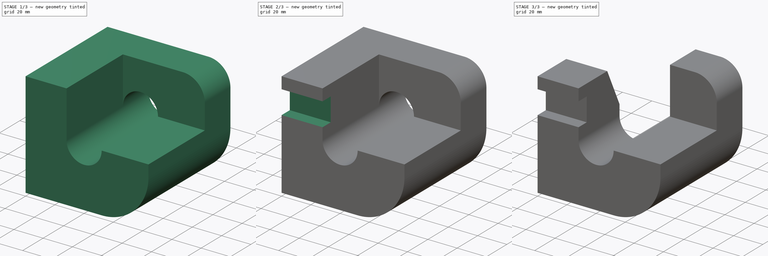
[diagram: build sequence overview — one tinted view per stage of 3, left to right]
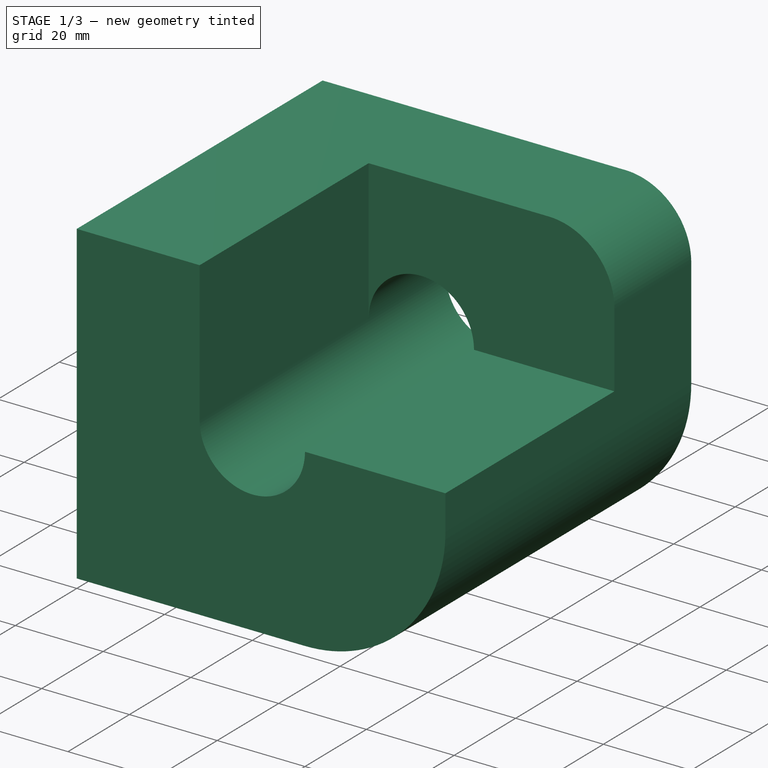
[diagram: stage 1 of 3 — iso view after this stage's code; geometry added in this stage tinted green]
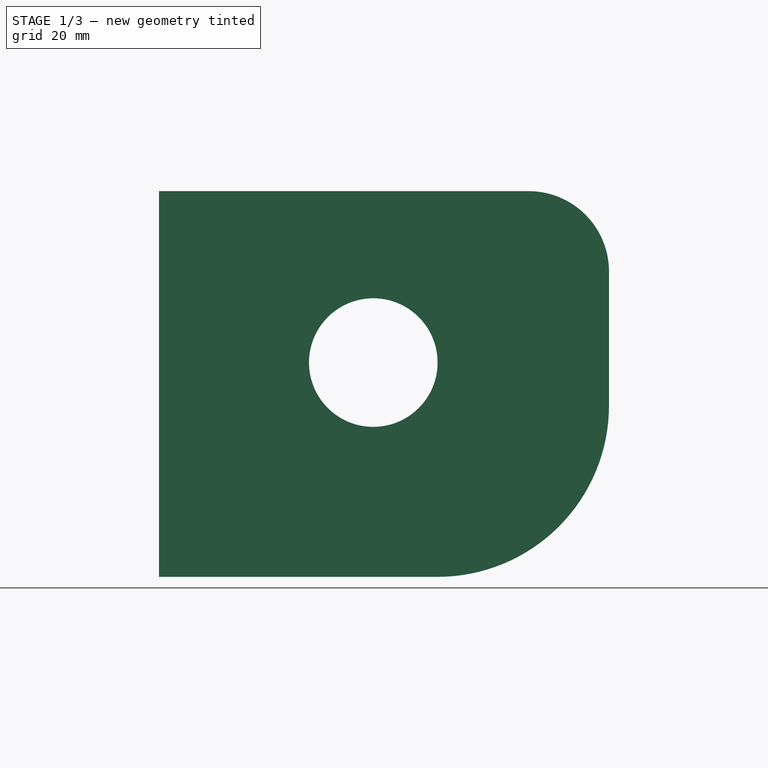
[diagram: stage 1 of 3 — front view after this stage's code; geometry added in this stage tinted green]
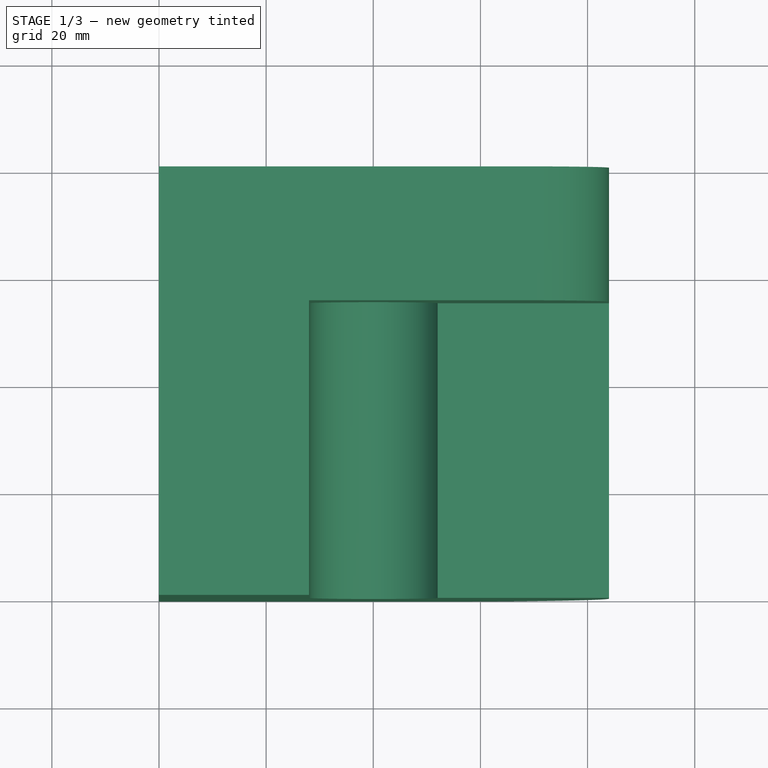
[diagram: stage 1 of 3 — top view after this stage's code; geometry added in this stage tinted green]
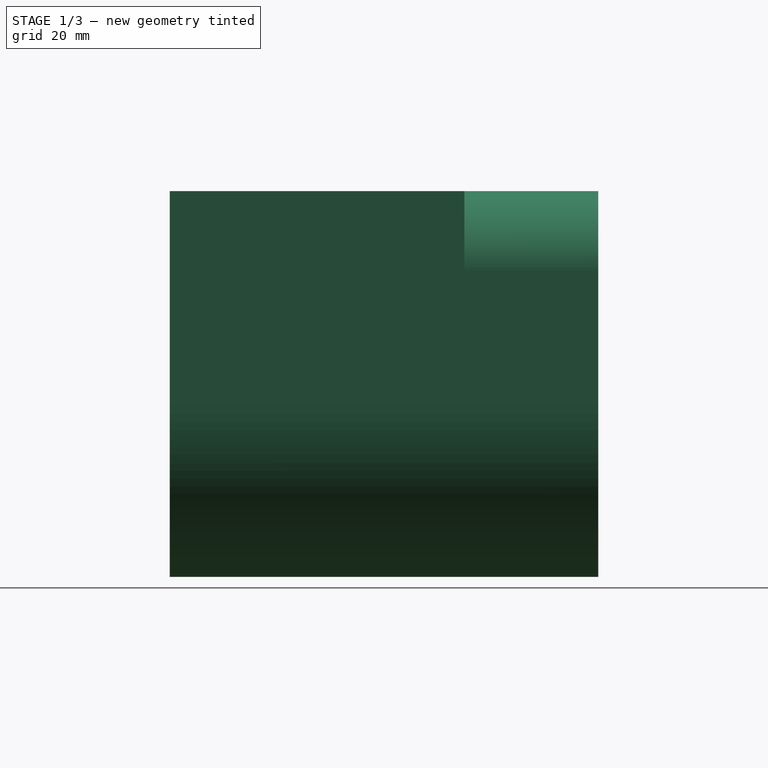
[diagram: stage 1 of 3 — right view after this stage's code; geometry added in this stage tinted green]
FCSTD DOCUMENT  (FreeCAD 0.16R)
Label: Fig 3.20 Final
License: All rights reserved
LicenseURL: http://en.wikipedia.org/wiki/All_rights_reserved
objects: Sketcher::SketchObject×5, PartDesign::Pocket×4, PartDesign::Pad×1
note: 15 computed .brp shape members not serialized (recipe doc carries the construction recipe); baked Part::Feature solids carry a one-line shape summary decoded from their .brp

FEATURE [Sketcher::SketchObject] Sketch
  Placement = pos=(0,0,0) rot=(-1,0,0;4.71239rad)
  sketch-geometry (7):
    g0: LineSegment StartX=-40 StartY=32 StartZ=0 EndX=29 EndY=32 EndZ=0
    g1: LineSegment StartX=44 StartY=17 StartZ=0 EndX=44 EndY=-8 EndZ=0
    g2: LineSegment StartX=12 StartY=-40 StartZ=0 EndX=-40 EndY=-40 EndZ=0
    g3: LineSegment StartX=-40 StartY=-40 StartZ=0 EndX=-40 EndY=32 EndZ=0
    g4: ArcOfCircle CenterX=12 CenterY=-8 CenterZ=0 NormalX=0 NormalY=0 NormalZ=1 Radius=32 StartAngle=4.71239 EndAngle=6.28319
    g5: ArcOfCircle CenterX=29 CenterY=17 CenterZ=0 NormalX=0 NormalY=0 NormalZ=1 Radius=15 StartAngle=0 EndAngle=1.5708
    g6: Circle CenterX=0 CenterY=0 CenterZ=0 NormalX=0 NormalY=0 NormalZ=1 Radius=12
  constraints (19):
    c: Coincident(g2,g3)
    c: Coincident(g3,g0)
    c: Horizontal(g0)
    c: Horizontal(g2)
    c: Vertical(g1)
    c: Vertical(g3)
    c: Tangent(g1,g4) = 1.5708
    c: Tangent(g2,g4) = 1.5708
    c: Radius(g4) = 32
    c: DistanceY(g3,g3) = 72
    c: Tangent(g0,g5) = 1.5708
    c: Tangent(g1,g5) = 1.5708
    c: Radius(g5) = 15
    c: PointOnObject(g6,g-2)
    c: Radius(g6) = 12
    c: DistanceY(g6,g0) = 32
    c: Coincident(g6,g-1)
    c: DistanceX(g2,g1) = 84
    c: DistanceX(g0,g-1) = 40
FEATURE [PartDesign::Pad] Pad
  Length = 80
  Length2 = 100
  Midplane = true
  Placement = pos=(0,0,0) rot=(-1,0,0;4.71239rad)
  Sketch = -> Sketch
  Type = 0
FEATURE [Sketcher::SketchObject] Sketch001
  ExternalGeometry = -> [Pad]
  Placement = pos=(0,-40,0) rot=(1,0,0;1.5708rad)
  Support = -> Pad [Face9]
  sketch-geometry (4):
    g0: LineSegment StartX=-12 StartY=46.92 StartZ=0 EndX=63.6334 EndY=46.92 EndZ=0
    g1: LineSegment StartX=63.6334 StartY=46.92 StartZ=0 EndX=63.6334 EndY=0 EndZ=0
    g2: LineSegment StartX=63.6334 StartY=0 StartZ=0 EndX=-12 EndY=0 EndZ=0
    g3: LineSegment StartX=-12 StartY=0 StartZ=0 EndX=-12 EndY=46.92 EndZ=0
  constraints (10):
    c: Coincident(g0,g1)
    c: Coincident(g1,g2)
    c: Coincident(g2,g3)
    c: Coincident(g3,g0)
    c: Horizontal(g0)
    c: Horizontal(g2)
    c: Vertical(g1)
    c: Vertical(g3)
    c: PointOnObject(g-1,g2)
    c: DistanceX(g-3,g2) = 28
FEATURE [PartDesign::Pocket] Pocket
  Length = 55
  Placement = pos=(0,0,0) rot=(-1,0,0;4.71239rad)
  Sketch = -> Sketch001
  Type = 0
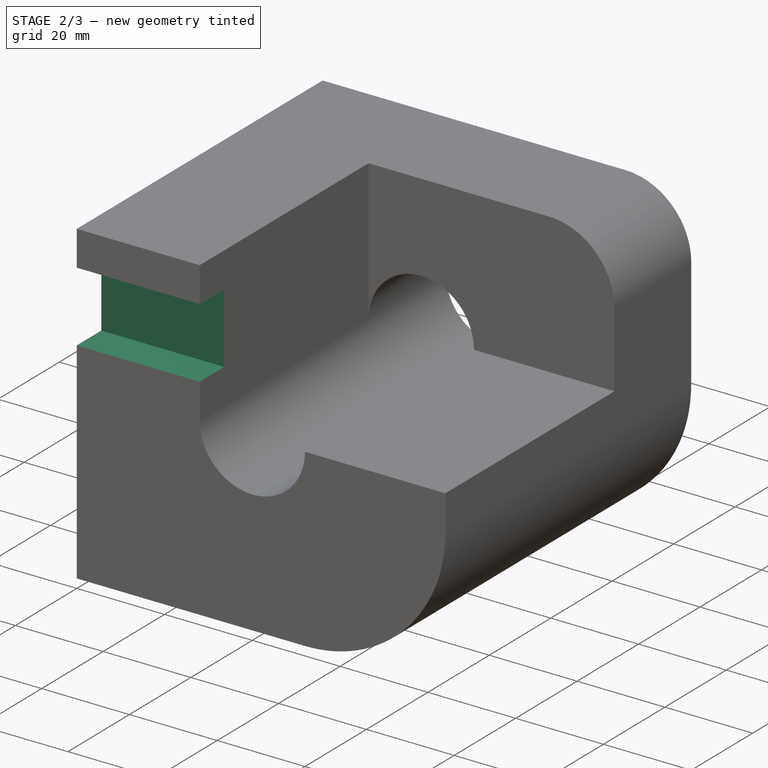
[diagram: stage 2 of 3 — iso view after this stage's code; geometry added in this stage tinted green]
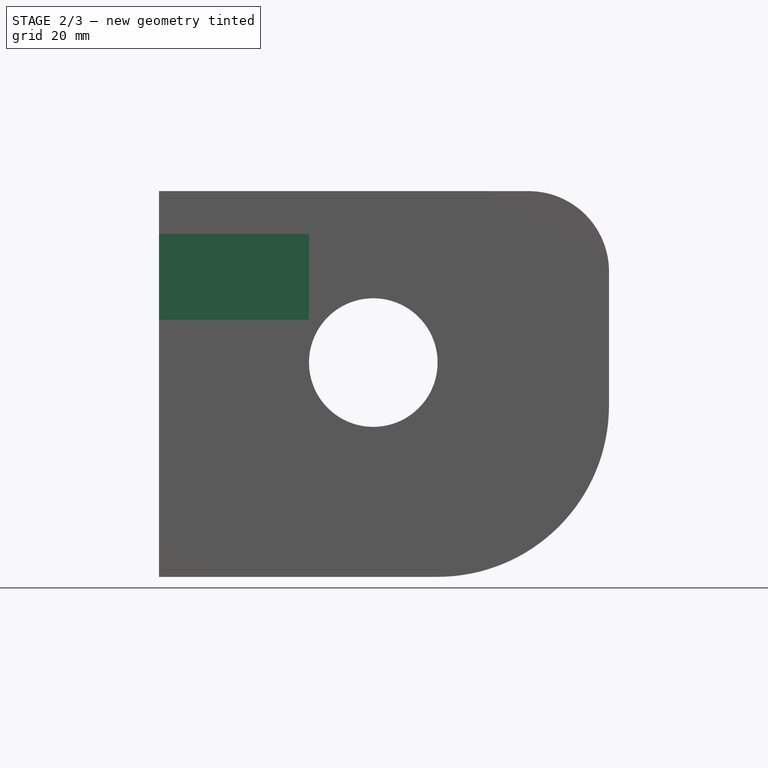
[diagram: stage 2 of 3 — front view after this stage's code; geometry added in this stage tinted green]
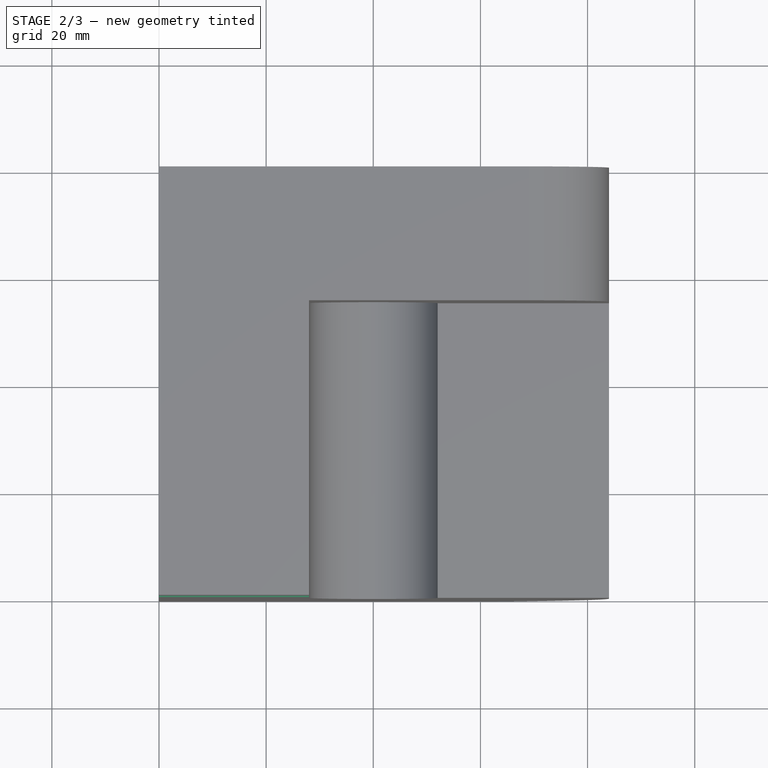
[diagram: stage 2 of 3 — top view after this stage's code; geometry added in this stage tinted green]
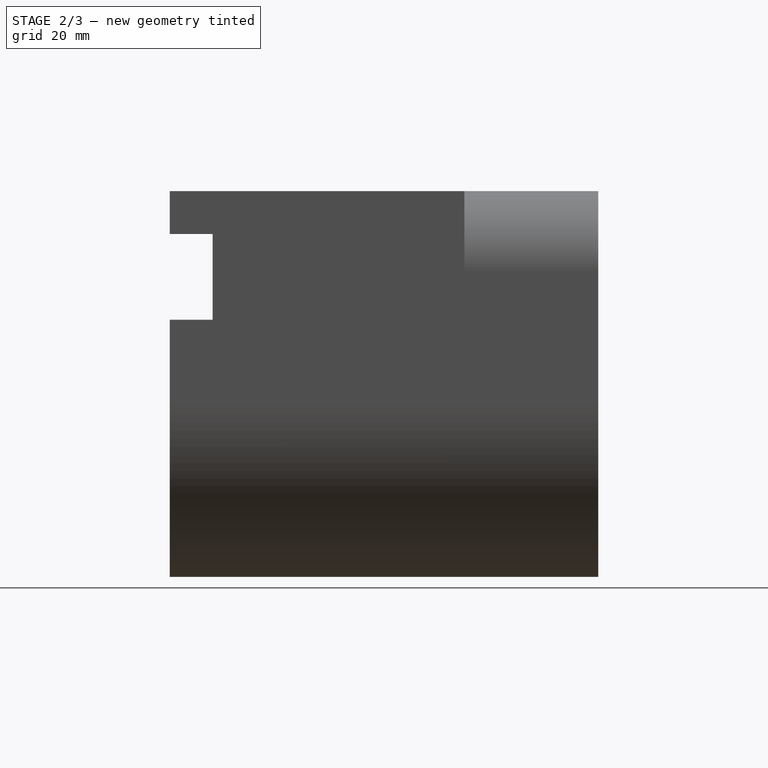
[diagram: stage 2 of 3 — right view after this stage's code; geometry added in this stage tinted green]
FEATURE [Sketcher::SketchObject] Sketch002
  ExternalGeometry = -> [Pocket]
  Placement = pos=(0,-40,0) rot=(1,0,0;1.5708rad)
  Support = -> Pocket [Face5]
  sketch-geometry (4):
    g0: LineSegment StartX=-48.9134 StartY=24 StartZ=0 EndX=-7.51333 EndY=24 EndZ=0
    g1: LineSegment StartX=-7.51333 StartY=24 StartZ=0 EndX=-7.51333 EndY=8 EndZ=0
    g2: LineSegment StartX=-7.51333 StartY=8 StartZ=0 EndX=-48.9134 EndY=8 EndZ=0
    g3: LineSegment StartX=-48.9134 StartY=8 StartZ=0 EndX=-48.9134 EndY=24 EndZ=0
  constraints (10):
    c: Coincident(g0,g1)
    c: Coincident(g1,g2)
    c: Coincident(g2,g3)
    c: Coincident(g3,g0)
    c: Horizontal(g0)
    c: Horizontal(g2)
    c: Vertical(g1)
    c: Vertical(g3)
    c: DistanceY(g3,g3) = 16
    c: DistanceY(g0,g-3) = 8
FEATURE [PartDesign::Pocket] Pocket001
  Length = 8
  Placement = pos=(0,0,0) rot=(-1,0,0;4.71239rad)
  Sketch = -> Sketch002
  Type = 0
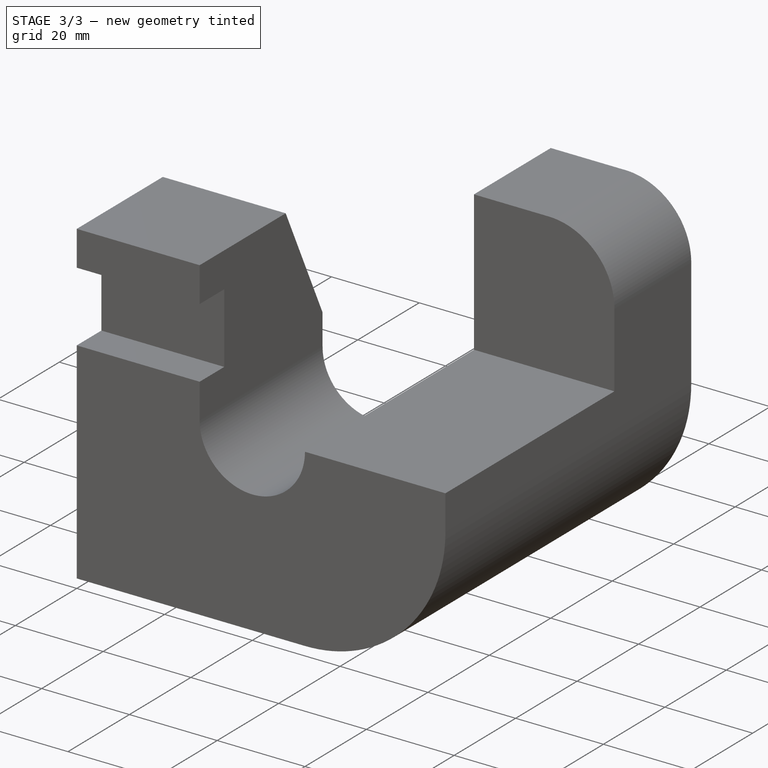
[diagram: stage 3 of 3 — iso view after this stage's code; geometry added in this stage tinted green]
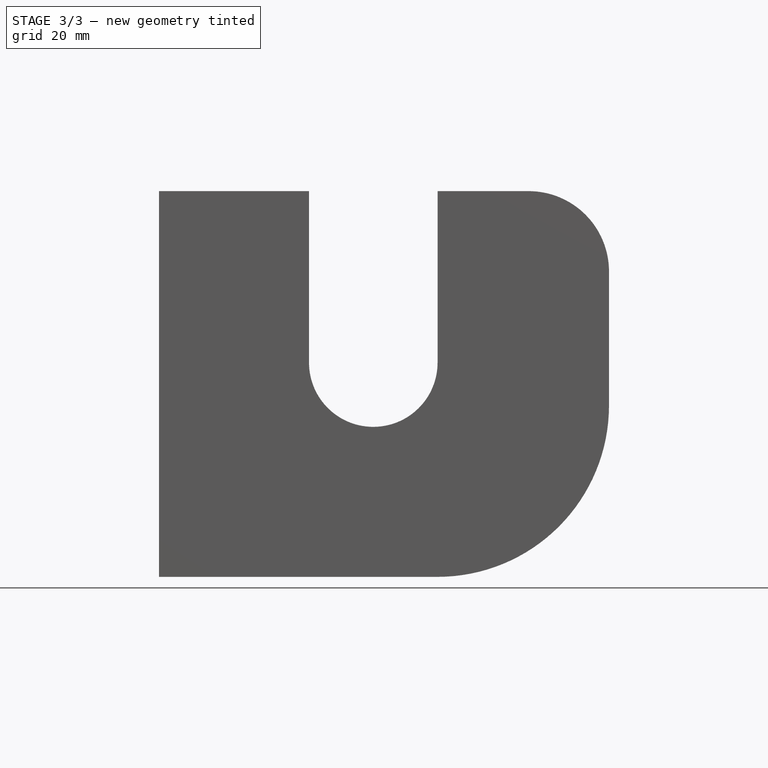
[diagram: stage 3 of 3 — front view after this stage's code; geometry added in this stage tinted green]
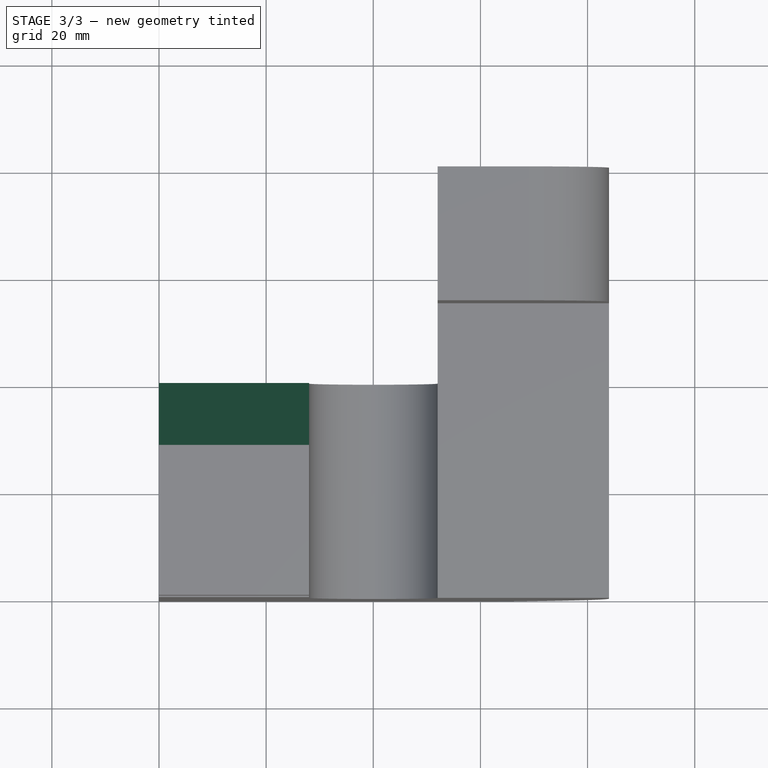
[diagram: stage 3 of 3 — top view after this stage's code; geometry added in this stage tinted green]
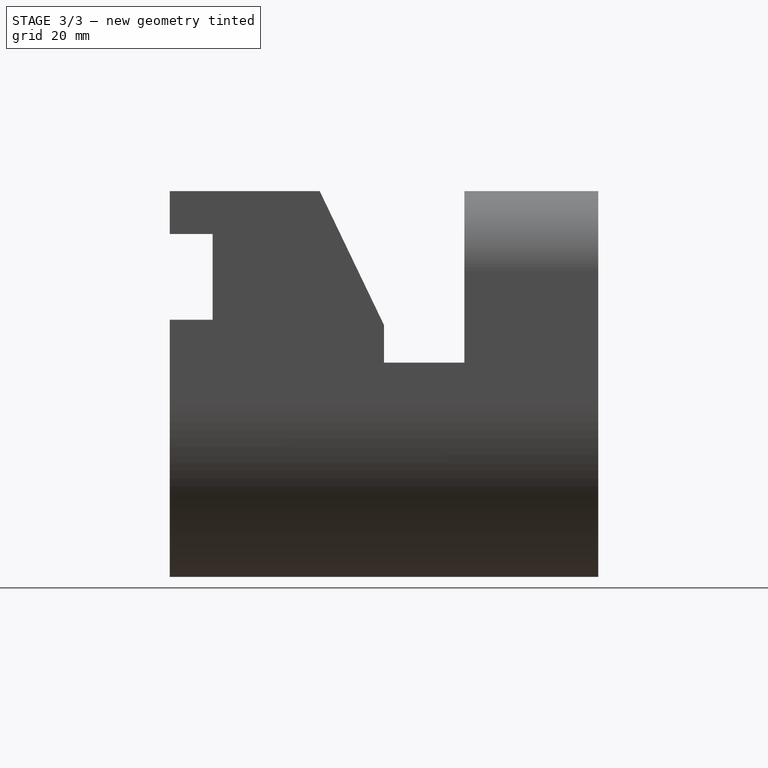
[diagram: stage 3 of 3 — right view after this stage's code; geometry added in this stage tinted green]
FEATURE [Sketcher::SketchObject] Sketch003
  ExternalGeometry = -> [Pocket001]
  Placement = pos=(0,40,0) rot=(-1,0,0;1.5708rad)
  Support = -> Pocket001 [Face4]
  sketch-geometry (4):
    g0: LineSegment StartX=-55.9685 StartY=49.4597 StartZ=0 EndX=12 EndY=49.4597 EndZ=0
    g1: LineSegment StartX=12 StartY=49.4597 StartZ=0 EndX=12 EndY=-44.16 EndZ=0
    g2: LineSegment StartX=12 StartY=-44.16 StartZ=0 EndX=-55.9685 EndY=-44.16 EndZ=0
    g3: LineSegment StartX=-55.9685 StartY=-44.16 StartZ=0 EndX=-55.9685 EndY=49.4597 EndZ=0
  constraints (9):
    c: Coincident(g1,g2)
    c: Coincident(g2,g3)
    c: Coincident(g3,g0)
    c: Horizontal(g0)
    c: Horizontal(g2)
    c: Vertical(g1)
    c: Vertical(g3)
    c: DistanceX(g-3,g0) = 52
    c: Coincident(g1,g0)
FEATURE [PartDesign::Pocket] Pocket002
  Length = 40
  Placement = pos=(0,0,0) rot=(-1,0,0;4.71239rad)
  Sketch = -> Sketch003
  Type = 0
FEATURE [Sketcher::SketchObject] Sketch004
  ExternalGeometry = -> [Pocket002]
  Placement = pos=(-12,0,0) rot=(0.707107,0,0.707107;3.14159rad)
  Support = -> Pocket002 [Face7]
  sketch-geometry (3):
    g0: LineSegment StartX=32 StartY=12 StartZ=0 EndX=32 EndY=0 EndZ=0
    g1: LineSegment StartX=32 StartY=0 StartZ=0 EndX=7 EndY=0 EndZ=0
    g2: LineSegment StartX=7 StartY=0 StartZ=0 EndX=32 EndY=12 EndZ=0
  constraints (9):
    c: Coincident(g0,g1)
    c: Horizontal(g1)
    c: Coincident(g1,g2)
    c: Coincident(g2,g0)
    c: DistanceY(g0,g0) = 12
    c: DistanceX(g1,g1) = 25
    c: Vertical(g0)
    c: PointOnObject(g0,g-1)
    c: Coincident(g0,g-3)
FEATURE [PartDesign::Pocket] Pocket003
  Length = 5
  Placement = pos=(0,0,0) rot=(-1,0,0;4.71239rad)
  Sketch = -> Sketch004
  Type = 1
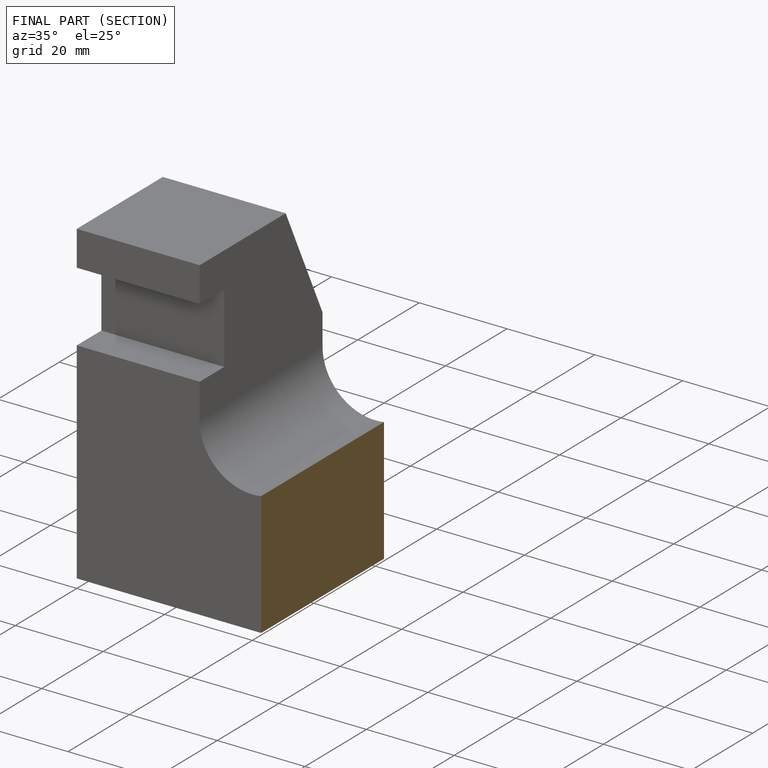
[diagram: finished part — half-section view (interior)]
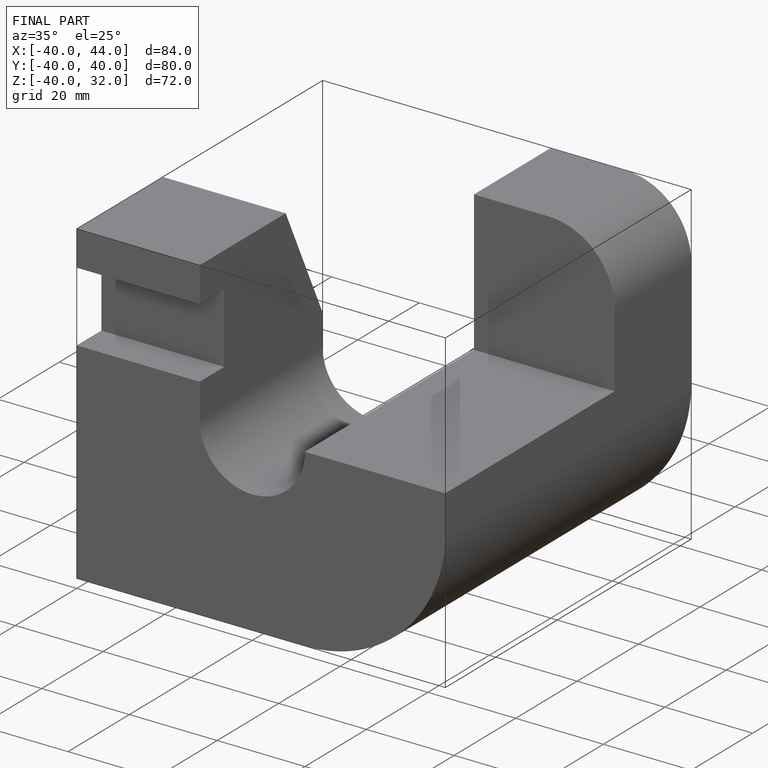
[diagram: finished part — iso view with bounding-box wireframe]
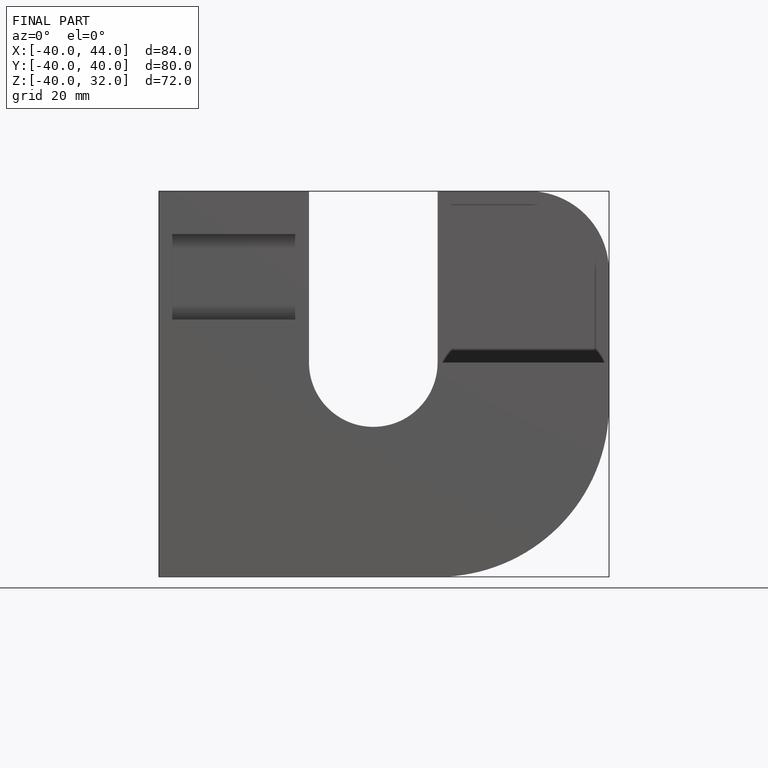
[diagram: finished part — front view with bounding-box wireframe]
